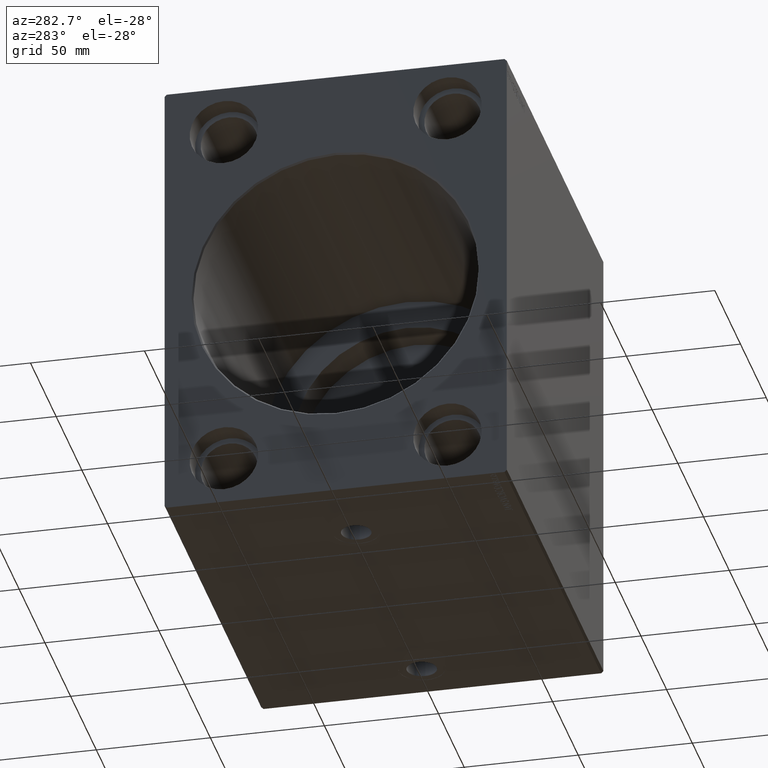
[diagram: clean part render]
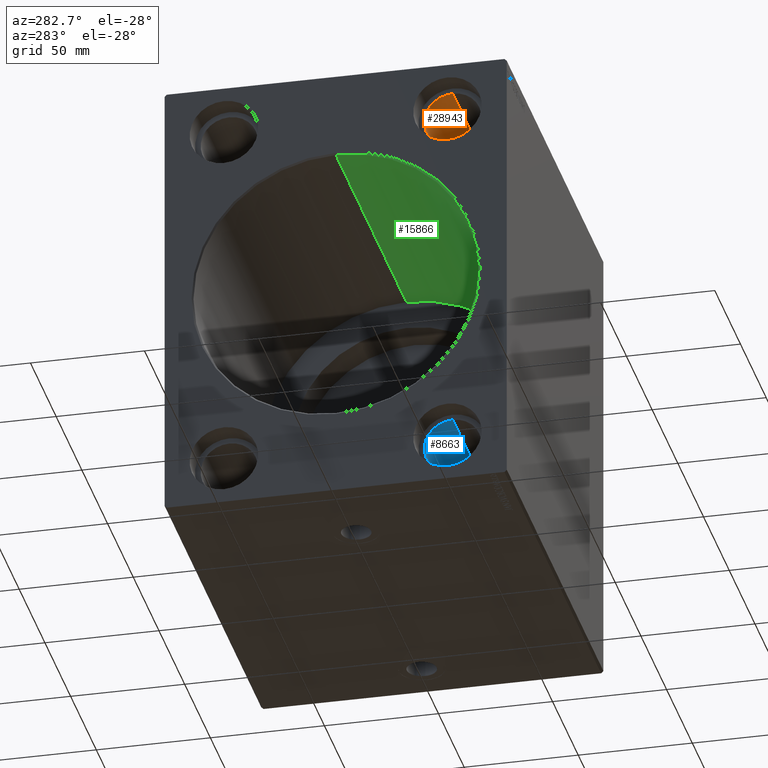
[diagram: same view with three faces highlighted in distinct colors, each labeled with its STEP entity id]
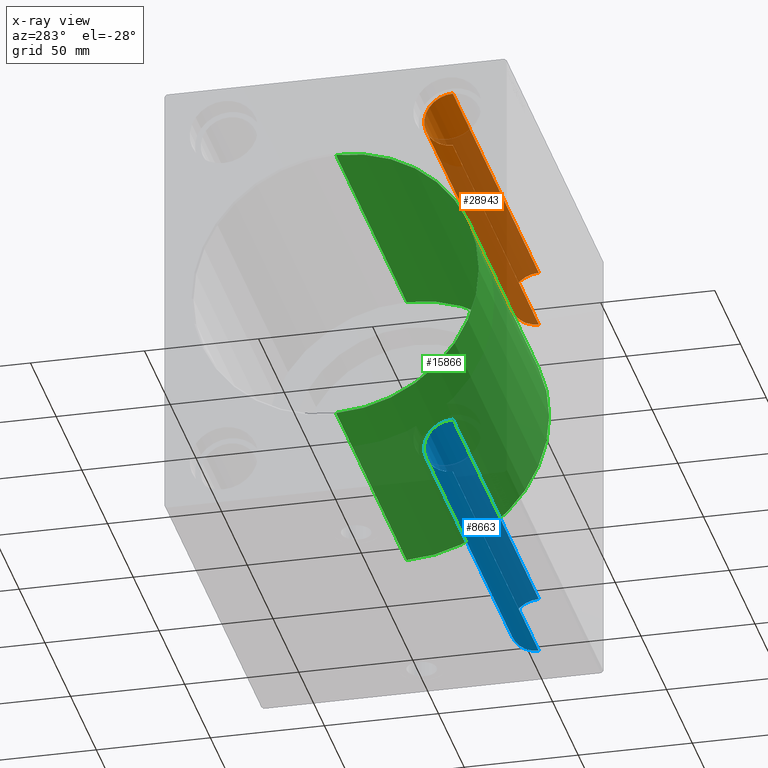
[diagram: x-ray of the same camera — body ghosted, the three highlighted faces saturated]
A machine part, auxiliary view with three faces highlighted in distinct colors.
The next image is the same camera in x-ray (body ghosted, the three faces saturated) — at least one of them is partly hidden behind the body in this view.
Their STEP definitions:

[orange] entity #28943 — the highlighted cylindrical surface (edge-blend (fillet) strip) has radius 12.5 mm, axis along (-1, -0, -0).
#414 = CARTESIAN_POINT ( 'NONE',  ( 10.33000000000000540, -48.99999999999999289, 79.00000000000001421 ) ) ;
#705 = ORIENTED_EDGE ( 'NONE', *, *, #20013, .T. ) ;
#1388 = AXIS2_PLACEMENT_3D ( 'NONE', #414, #39566, #36355 ) ;
#2179 = FACE_OUTER_BOUND ( 'NONE', #37163, .T. ) ;
#2949 = VERTEX_POINT ( 'NONE', #14194 ) ;
#2952 = CARTESIAN_POINT ( 'NONE',  ( 188.0000000000000000, -48.99999999999999289, 91.50000000000002842 ) ) ;
#7241 = CARTESIAN_POINT ( 'NONE',  ( 177.6699999999999875, -48.99999999999999289, 79.00000000000001421 ) ) ;
#7634 = ORIENTED_EDGE ( 'NONE', *, *, #23027, .F. ) ;
#9468 = VECTOR ( 'NONE', #16000, 1000.000000000000000 ) ;
#10918 = VECTOR ( 'NONE', #36420, 1000.000000000000000 ) ;
#11373 = DIRECTION ( 'NONE',  ( 0.000000000000000000, 0.000000000000000000, 1.000000000000000000 ) ) ;
#12007 = CARTESIAN_POINT ( 'NONE',  ( 188.0000000000000000, -48.99999999999999289, 79.00000000000001421 ) ) ;
#14194 = CARTESIAN_POINT ( 'NONE',  ( 177.6699999999999875, -48.99999999999999289, 91.50000000000002842 ) ) ;
#15591 = AXIS2_PLACEMENT_3D ( 'NONE', #7241, #26691, #29918 ) ;
#16000 = DIRECTION ( 'NONE',  ( -1.000000000000000000, -0.000000000000000000, -0.000000000000000000 ) ) ;
#17692 = EDGE_CURVE ( 'NONE', #24056, #2949, #23071, .T. ) ;
#17742 = CIRCLE ( 'NONE', #1388, 12.50000000000001066 ) ;
#20013 = EDGE_CURVE ( 'NONE', #2949, #32217, #29475, .T. ) ;
#20161 = VERTEX_POINT ( 'NONE', #39755 ) ;
#20854 = CARTESIAN_POINT ( 'NONE',  ( 177.6699999999999875, -48.99999999999999289, 66.50000000000000000 ) ) ;
#21097 = AXIS2_PLACEMENT_3D ( 'NONE', #12007, #31485, #11373 ) ;
#23027 = EDGE_CURVE ( 'NONE', #24056, #20161, #23358, .T. ) ;
#23071 = CIRCLE ( 'NONE', #15591, 12.50000000000001066 ) ;
#23358 = LINE ( 'NONE', #35989, #10918 ) ;
#24056 = VERTEX_POINT ( 'NONE', #20854 ) ;
#24539 = ORIENTED_EDGE ( 'NONE', *, *, #17692, .T. ) ;
#26691 = DIRECTION ( 'NONE',  ( 1.000000000000000000, 0.000000000000000000, 0.000000000000000000 ) ) ;
#28943 = ADVANCED_FACE ( 'NONE', ( #2179 ), #34265, .F. ) ;
#29475 = LINE ( 'NONE', #2952, #9468 ) ;
#29918 = DIRECTION ( 'NONE',  ( 0.000000000000000000, 0.000000000000000000, -1.000000000000000000 ) ) ;
#30811 = ORIENTED_EDGE ( 'NONE', *, *, #32807, .T. ) ;
#31485 = DIRECTION ( 'NONE',  ( -1.000000000000000000, -0.000000000000000000, -0.000000000000000000 ) ) ;
#32217 = VERTEX_POINT ( 'NONE', #32814 ) ;
#32807 = EDGE_CURVE ( 'NONE', #32217, #20161, #17742, .T. ) ;
#32814 = CARTESIAN_POINT ( 'NONE',  ( 10.33000000000000540, -48.99999999999999289, 91.50000000000002842 ) ) ;
#34265 = CYLINDRICAL_SURFACE ( 'NONE', #21097, 12.50000000000001066 ) ;
#35989 = CARTESIAN_POINT ( 'NONE',  ( 188.0000000000000000, -48.99999999999999289, 66.50000000000000000 ) ) ;
#36355 = DIRECTION ( 'NONE',  ( 0.000000000000000000, 0.000000000000000000, 1.000000000000000000 ) ) ;
#36420 = DIRECTION ( 'NONE',  ( -1.000000000000000000, -0.000000000000000000, -0.000000000000000000 ) ) ;
#37163 = EDGE_LOOP ( 'NONE', ( #7634, #24539, #705, #30811 ) ) ;
#39566 = DIRECTION ( 'NONE',  ( -1.000000000000000000, 0.000000000000000000, 0.000000000000000000 ) ) ;
#39755 = CARTESIAN_POINT ( 'NONE',  ( 10.33000000000000540, -48.99999999999999289, 66.50000000000000000 ) ) ;

[blue] entity #8663 — the highlighted cylindrical surface (edge-blend (fillet) strip) has radius 12.5 mm, axis along (-1, -0, -0).
#803 = ORIENTED_EDGE ( 'NONE', *, *, #23140, .F. ) ;
#851 = ORIENTED_EDGE ( 'NONE', *, *, #1236, .F. ) ;
#1114 = DIRECTION ( 'NONE',  ( 0.000000000000000000, 0.000000000000000000, -1.000000000000000000 ) ) ;
#1236 = EDGE_CURVE ( 'NONE', #5524, #31847, #24195, .T. ) ;
#1398 = VECTOR ( 'NONE', #21920, 1000.000000000000000 ) ;
#1731 = AXIS2_PLACEMENT_3D ( 'NONE', #41014, #11061, #24099 ) ;
#2052 = CARTESIAN_POINT ( 'NONE',  ( 188.0000000000000000, -48.99999999999999289, -66.50000000000000000 ) ) ;
#4428 = CYLINDRICAL_SURFACE ( 'NONE', #1731, 12.50000000000001066 ) ;
#5468 = LINE ( 'NONE', #2052, #1398 ) ;
#5524 = VERTEX_POINT ( 'NONE', #35705 ) ;
#8663 = ADVANCED_FACE ( 'NONE', ( #37159 ), #4428, .F. ) ;
#11061 = DIRECTION ( 'NONE',  ( -1.000000000000000000, -0.000000000000000000, -0.000000000000000000 ) ) ;
#11375 = CARTESIAN_POINT ( 'NONE',  ( 10.33000000000000540, -48.99999999999999289, -79.00000000000001421 ) ) ;
#11624 = AXIS2_PLACEMENT_3D ( 'NONE', #11375, #23989, #1114 ) ;
#14870 = CARTESIAN_POINT ( 'NONE',  ( 177.6699999999999875, -48.99999999999999289, -91.50000000000002842 ) ) ;
#16008 = DIRECTION ( 'NONE',  ( -1.000000000000000000, 0.000000000000000000, 0.000000000000000000 ) ) ;
#20466 = ORIENTED_EDGE ( 'NONE', *, *, #41315, .F. ) ;
#20517 = ORIENTED_EDGE ( 'NONE', *, *, #25084, .T. ) ;
#21123 = VERTEX_POINT ( 'NONE', #36879 ) ;
#21920 = DIRECTION ( 'NONE',  ( -1.000000000000000000, -0.000000000000000000, -0.000000000000000000 ) ) ;
#22205 = DIRECTION ( 'NONE',  ( 0.000000000000000000, 0.000000000000000000, 1.000000000000000000 ) ) ;
#22390 = VERTEX_POINT ( 'NONE', #34467 ) ;
#23140 = EDGE_CURVE ( 'NONE', #21123, #22390, #28682, .T. ) ;
#23989 = DIRECTION ( 'NONE',  ( 1.000000000000000000, -0.000000000000000000, -0.000000000000000000 ) ) ;
#24099 = DIRECTION ( 'NONE',  ( 0.000000000000000000, 0.000000000000000000, 1.000000000000000000 ) ) ;
#24195 = CIRCLE ( 'NONE', #33754, 12.50000000000001066 ) ;
#25084 = EDGE_CURVE ( 'NONE', #5524, #22390, #5468, .T. ) ;
#25445 = VECTOR ( 'NONE', #40018, 1000.000000000000000 ) ;
#27363 = LINE ( 'NONE', #40437, #25445 ) ;
#28682 = CIRCLE ( 'NONE', #11624, 12.50000000000001066 ) ;
#31847 = VERTEX_POINT ( 'NONE', #14870 ) ;
#31862 = CARTESIAN_POINT ( 'NONE',  ( 177.6699999999999875, -48.99999999999999289, -79.00000000000001421 ) ) ;
#33754 = AXIS2_PLACEMENT_3D ( 'NONE', #31862, #16008, #22205 ) ;
#34467 = CARTESIAN_POINT ( 'NONE',  ( 10.33000000000000540, -48.99999999999999289, -66.50000000000000000 ) ) ;
#35705 = CARTESIAN_POINT ( 'NONE',  ( 177.6699999999999875, -48.99999999999999289, -66.50000000000000000 ) ) ;
#36879 = CARTESIAN_POINT ( 'NONE',  ( 10.33000000000000540, -48.99999999999999289, -91.50000000000002842 ) ) ;
#37159 = FACE_OUTER_BOUND ( 'NONE', #37267, .T. ) ;
#37267 = EDGE_LOOP ( 'NONE', ( #20466, #851, #20517, #803 ) ) ;
#40018 = DIRECTION ( 'NONE',  ( -1.000000000000000000, -0.000000000000000000, -0.000000000000000000 ) ) ;
#40437 = CARTESIAN_POINT ( 'NONE',  ( 188.0000000000000000, -48.99999999999999289, -91.50000000000002842 ) ) ;
#41014 = CARTESIAN_POINT ( 'NONE',  ( 188.0000000000000000, -48.99999999999999289, -79.00000000000001421 ) ) ;
#41315 = EDGE_CURVE ( 'NONE', #31847, #21123, #27363, .T. ) ;

[green] entity #15866 — the highlighted cylindrical surface (partial cylindrical patch) has radius 62.5 mm, axis along (-1, -0, -0).
#346 = CIRCLE ( 'NONE', #18795, 62.50000000000000000 ) ;
#583 = ORIENTED_EDGE ( 'NONE', *, *, #2922, .F. ) ;
#661 = CARTESIAN_POINT ( 'NONE',  ( 0.7000000000000061728, 0.000000000000000000, 0.000000000000000000 ) ) ;
#1054 = VERTEX_POINT ( 'NONE', #26524 ) ;
#2187 = CARTESIAN_POINT ( 'NONE',  ( 0.7000000000000061728, 7.654042494670957804E-15, -62.50000000000000000 ) ) ;
#2665 = DIRECTION ( 'NONE',  ( -1.000000000000000000, -0.000000000000000000, -0.000000000000000000 ) ) ;
#2922 = EDGE_CURVE ( 'NONE', #6164, #1054, #346, .T. ) ;
#3976 = DIRECTION ( 'NONE',  ( 0.000000000000000000, 0.000000000000000000, 1.000000000000000000 ) ) ;
#6057 = ORIENTED_EDGE ( 'NONE', *, *, #30396, .T. ) ;
#6108 = CIRCLE ( 'NONE', #34826, 62.50000000000000000 ) ;
#6164 = VERTEX_POINT ( 'NONE', #39676 ) ;
#7493 = DIRECTION ( 'NONE',  ( 0.000000000000000000, 0.000000000000000000, -1.000000000000000000 ) ) ;
#7681 = VERTEX_POINT ( 'NONE', #35052 ) ;
#7983 = DIRECTION ( 'NONE',  ( 0.000000000000000000, 0.000000000000000000, 1.000000000000000000 ) ) ;
#12659 = EDGE_LOOP ( 'NONE', ( #583, #22650, #6057, #35089 ) ) ;
#14662 = EDGE_CURVE ( 'NONE', #6164, #29562, #37526, .T. ) ;
#15866 = ADVANCED_FACE ( 'NONE', ( #33277 ), #26840, .F. ) ;
#18795 = AXIS2_PLACEMENT_3D ( 'NONE', #23807, #20608, #7983 ) ;
#18915 = LINE ( 'NONE', #38800, #34870 ) ;
#20608 = DIRECTION ( 'NONE',  ( -1.000000000000000000, 0.000000000000000000, 0.000000000000000000 ) ) ;
#22650 = ORIENTED_EDGE ( 'NONE', *, *, #14662, .T. ) ;
#22995 = DIRECTION ( 'NONE',  ( -1.000000000000000000, -0.000000000000000000, -0.000000000000000000 ) ) ;
#23639 = CARTESIAN_POINT ( 'NONE',  ( 138.0000000000000000, 0.000000000000000000, 0.000000000000000000 ) ) ;
#23807 = CARTESIAN_POINT ( 'NONE',  ( 138.0000000000000000, 0.000000000000000000, 0.000000000000000000 ) ) ;
#24161 = EDGE_CURVE ( 'NONE', #1054, #7681, #18915, .T. ) ;
#26524 = CARTESIAN_POINT ( 'NONE',  ( 138.0000000000000000, 0.000000000000000000, 62.50000000000000000 ) ) ;
#26840 = CYLINDRICAL_SURFACE ( 'NONE', #38755, 62.50000000000000000 ) ;
#27106 = VECTOR ( 'NONE', #27238, 1000.000000000000000 ) ;
#27238 = DIRECTION ( 'NONE',  ( -1.000000000000000000, -0.000000000000000000, -0.000000000000000000 ) ) ;
#29562 = VERTEX_POINT ( 'NONE', #2187 ) ;
#30396 = EDGE_CURVE ( 'NONE', #29562, #7681, #6108, .T. ) ;
#33277 = FACE_OUTER_BOUND ( 'NONE', #12659, .T. ) ;
#33374 = DIRECTION ( 'NONE',  ( -1.000000000000000000, 0.000000000000000000, 0.000000000000000000 ) ) ;
#33890 = CARTESIAN_POINT ( 'NONE',  ( 138.0000000000000000, 7.654042494670957804E-15, -62.50000000000000000 ) ) ;
#34826 = AXIS2_PLACEMENT_3D ( 'NONE', #661, #33374, #7493 ) ;
#34870 = VECTOR ( 'NONE', #2665, 1000.000000000000000 ) ;
#35052 = CARTESIAN_POINT ( 'NONE',  ( 0.7000000000000061728, 0.000000000000000000, 62.50000000000000000 ) ) ;
#35089 = ORIENTED_EDGE ( 'NONE', *, *, #24161, .F. ) ;
#37526 = LINE ( 'NONE', #33890, #27106 ) ;
#38755 = AXIS2_PLACEMENT_3D ( 'NONE', #23639, #22995, #3976 ) ;
#38800 = CARTESIAN_POINT ( 'NONE',  ( 138.0000000000000000, 0.000000000000000000, 62.50000000000000000 ) ) ;
#39676 = CARTESIAN_POINT ( 'NONE',  ( 138.0000000000000000, 7.654042494670957804E-15, -62.50000000000000000 ) ) ;